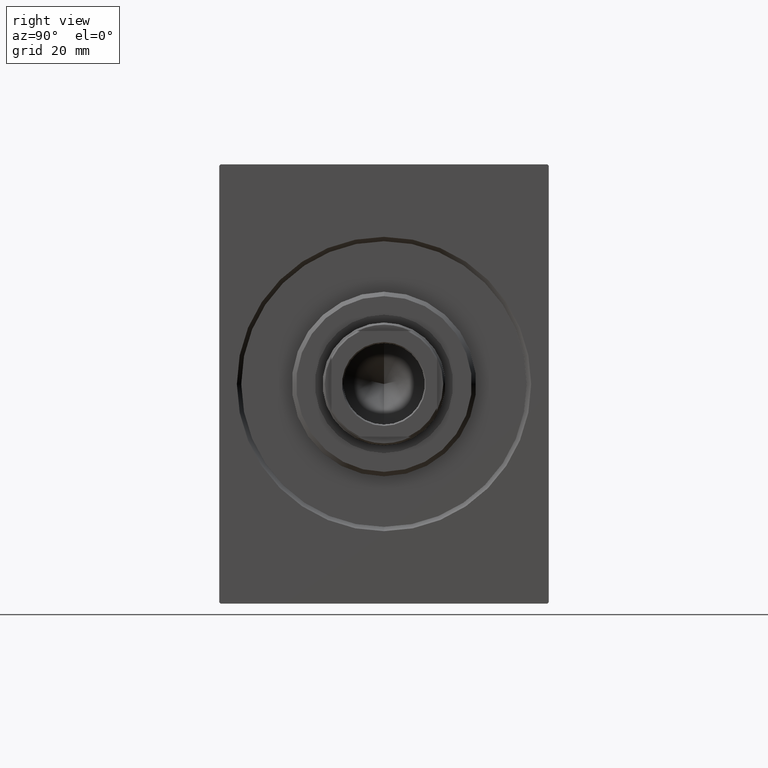
[diagram: clean part render]
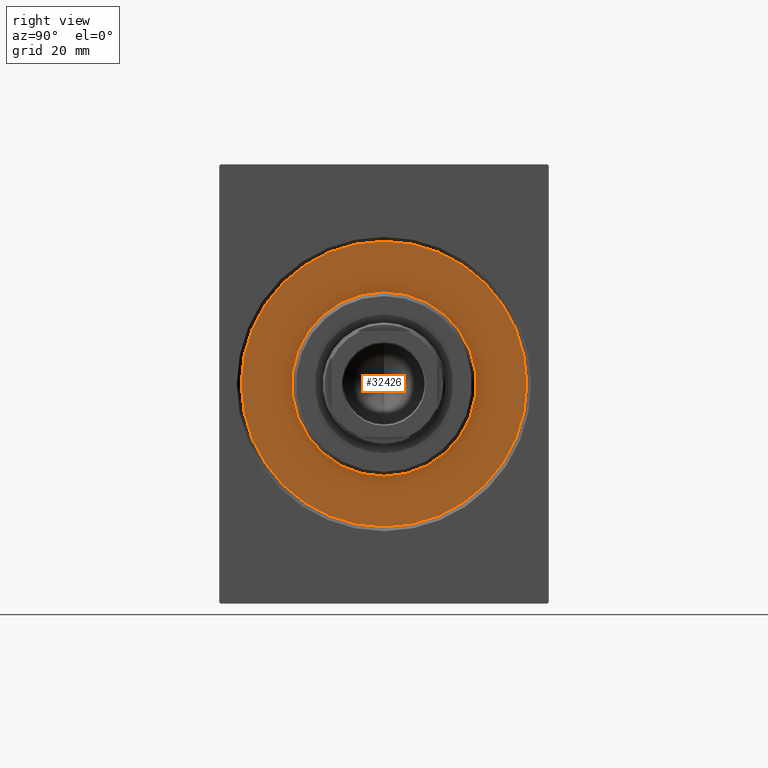
[diagram: same view with one face highlighted and labeled with its STEP entity id]
A machine part, right view. The second image highlights one B-rep face of the part: STEP entity #32426.
In plain terms, the highlighted planar face has unit normal (1, 0, 0).
Its self-contained STEP definition (entity closure, byte-faithful):
#253 = AXIS2_PLACEMENT_3D ( 'NONE', #3618, #20270, #33501 ) ;
#574 = VERTEX_POINT ( 'NONE', #20921 ) ;
#2093 = DIRECTION ( 'NONE',  ( 0.000000000000000000, 0.000000000000000000, -1.000000000000000000 ) ) ;
#3353 = EDGE_CURVE ( 'NONE', #36843, #574, #6232, .T. ) ;
#3399 = VERTEX_POINT ( 'NONE', #12652 ) ;
#3618 = CARTESIAN_POINT ( 'NONE',  ( 0.000000000000000000, 0.000000000000000000, 0.000000000000000000 ) ) ;
#4512 = EDGE_CURVE ( 'NONE', #3399, #42003, #17321, .T. ) ;
#6232 = CIRCLE ( 'NONE', #35310, 32.50000000000000000 ) ;
#10903 = CARTESIAN_POINT ( 'NONE',  ( 0.000000000000000000, 0.000000000000000000, 0.000000000000000000 ) ) ;
#11199 = ORIENTED_EDGE ( 'NONE', *, *, #23970, .F. ) ;
#12652 = CARTESIAN_POINT ( 'NONE',  ( 0.000000000000000000, 0.000000000000000000, 21.00000000000000000 ) ) ;
#13631 = CIRCLE ( 'NONE', #14349, 32.50000000000000000 ) ;
#14097 = CIRCLE ( 'NONE', #253, 21.00000000000000000 ) ;
#14349 = AXIS2_PLACEMENT_3D ( 'NONE', #10903, #31037, #30583 ) ;
#14642 = DIRECTION ( 'NONE',  ( 0.000000000000000000, 0.000000000000000000, -1.000000000000000000 ) ) ;
#15919 = CARTESIAN_POINT ( 'NONE',  ( 0.000000000000000000, 0.000000000000000000, 0.000000000000000000 ) ) ;
#17321 = CIRCLE ( 'NONE', #28396, 21.00000000000000000 ) ;
#20270 = DIRECTION ( 'NONE',  ( 1.000000000000000000, -0.000000000000000000, 0.000000000000000000 ) ) ;
#20921 = CARTESIAN_POINT ( 'NONE',  ( 0.000000000000000000, 0.000000000000000000, -32.50000000000000000 ) ) ;
#21550 = DIRECTION ( 'NONE',  ( 1.000000000000000000, 0.000000000000000000, 0.000000000000000000 ) ) ;
#22387 = PLANE ( 'NONE',  #41965 ) ;
#23970 = EDGE_CURVE ( 'NONE', #42003, #3399, #14097, .T. ) ;
#24360 = CARTESIAN_POINT ( 'NONE',  ( 0.000000000000000000, 0.000000000000000000, 0.000000000000000000 ) ) ;
#25231 = FACE_BOUND ( 'NONE', #41108, .T. ) ;
#28396 = AXIS2_PLACEMENT_3D ( 'NONE', #32126, #35580, #29699 ) ;
#29252 = ORIENTED_EDGE ( 'NONE', *, *, #4512, .F. ) ;
#29699 = DIRECTION ( 'NONE',  ( 0.000000000000000000, 0.000000000000000000, -1.000000000000000000 ) ) ;
#30583 = DIRECTION ( 'NONE',  ( 0.000000000000000000, 0.000000000000000000, -1.000000000000000000 ) ) ;
#30943 = ORIENTED_EDGE ( 'NONE', *, *, #3353, .T. ) ;
#31037 = DIRECTION ( 'NONE',  ( 1.000000000000000000, 0.000000000000000000, 0.000000000000000000 ) ) ;
#31788 = CARTESIAN_POINT ( 'NONE',  ( 0.000000000000000000, 2.571758278209441661E-15, -21.00000000000000000 ) ) ;
#32126 = CARTESIAN_POINT ( 'NONE',  ( 0.000000000000000000, 0.000000000000000000, 0.000000000000000000 ) ) ;
#32155 = ORIENTED_EDGE ( 'NONE', *, *, #38455, .T. ) ;
#32180 = DIRECTION ( 'NONE',  ( 1.000000000000000000, 0.000000000000000000, 0.000000000000000000 ) ) ;
#32426 = ADVANCED_FACE ( 'NONE', ( #42141, #25231 ), #22387, .T. ) ;
#33501 = DIRECTION ( 'NONE',  ( 0.000000000000000000, 0.000000000000000000, -1.000000000000000000 ) ) ;
#35310 = AXIS2_PLACEMENT_3D ( 'NONE', #24360, #21550, #14642 ) ;
#35580 = DIRECTION ( 'NONE',  ( 1.000000000000000000, -0.000000000000000000, 0.000000000000000000 ) ) ;
#36843 = VERTEX_POINT ( 'NONE', #38420 ) ;
#37635 = EDGE_LOOP ( 'NONE', ( #32155, #30943 ) ) ;
#38420 = CARTESIAN_POINT ( 'NONE',  ( 0.000000000000000000, 3.980102097228898626E-15, 32.50000000000000000 ) ) ;
#38455 = EDGE_CURVE ( 'NONE', #574, #36843, #13631, .T. ) ;
#41108 = EDGE_LOOP ( 'NONE', ( #29252, #11199 ) ) ;
#41965 = AXIS2_PLACEMENT_3D ( 'NONE', #15919, #32180, #2093 ) ;
#42003 = VERTEX_POINT ( 'NONE', #31788 ) ;
#42141 = FACE_OUTER_BOUND ( 'NONE', #37635, .T. ) ;